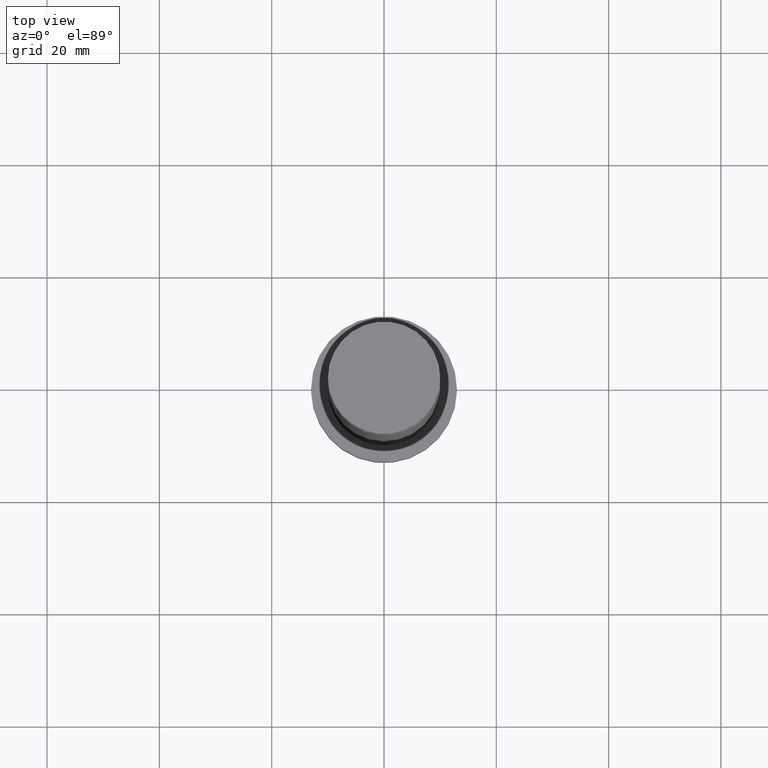
[diagram: clean part render]
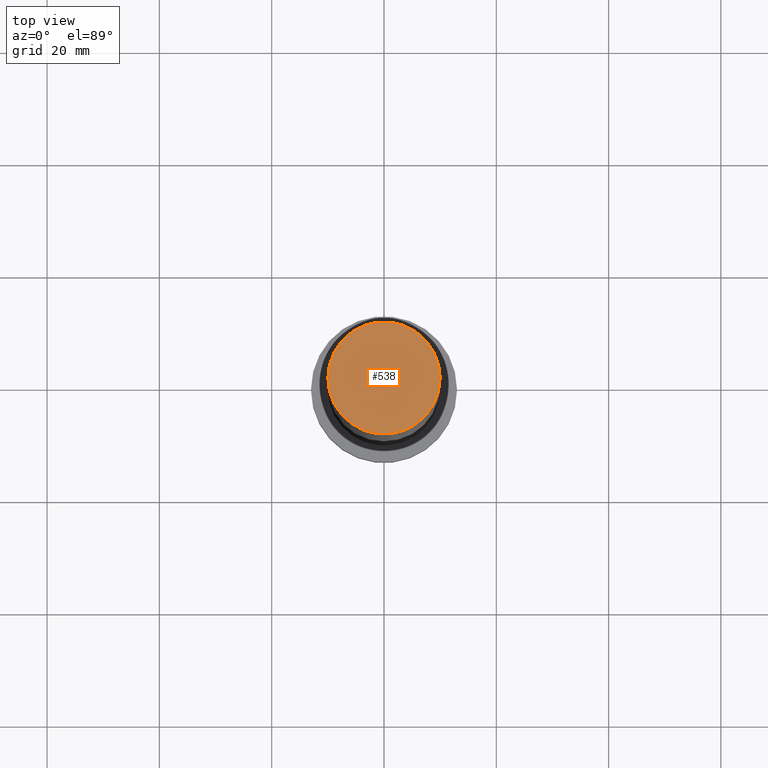
[diagram: same view with one face highlighted and labeled with its STEP entity id]
A machine part, top view. The second image highlights one B-rep face of the part: STEP entity #538.
In plain terms, the highlighted planar face has unit normal (0, 0, 1).
Its self-contained STEP definition (entity closure, byte-faithful):
#30 = AXIS2_PLACEMENT_3D ( 'NONE', #93, #466, #1410 ) ;
#54 = AXIS2_PLACEMENT_3D ( 'NONE', #687, #1573, #580 ) ;
#93 = CARTESIAN_POINT ( 'NONE',  ( 0.000000000000000000, 0.000000000000000000, 125.0000000000000000 ) ) ;
#151 = EDGE_LOOP ( 'NONE', ( #877, #815 ) ) ;
#221 = DIRECTION ( 'NONE',  ( 0.000000000000000000, 0.000000000000000000, 1.000000000000000000 ) ) ;
#229 = DIRECTION ( 'NONE',  ( 1.000000000000000000, 0.000000000000000000, 0.000000000000000000 ) ) ;
#335 = CARTESIAN_POINT ( 'NONE',  ( 0.000000000000000000, 0.000000000000000000, 125.0000000000000000 ) ) ;
#466 = DIRECTION ( 'NONE',  ( 0.000000000000000000, 0.000000000000000000, 1.000000000000000000 ) ) ;
#538 = ADVANCED_FACE ( 'NONE', ( #1557 ), #1184, .T. ) ;
#580 = DIRECTION ( 'NONE',  ( 1.000000000000000000, 0.000000000000000000, 0.000000000000000000 ) ) ;
#687 = CARTESIAN_POINT ( 'NONE',  ( 0.000000000000000000, 0.000000000000000000, 125.0000000000000000 ) ) ;
#736 = CIRCLE ( 'NONE', #54, 10.00000000000000178 ) ;
#776 = VERTEX_POINT ( 'NONE', #1302 ) ;
#815 = ORIENTED_EDGE ( 'NONE', *, *, #917, .T. ) ;
#869 = EDGE_CURVE ( 'NONE', #942, #776, #981, .T. ) ;
#877 = ORIENTED_EDGE ( 'NONE', *, *, #869, .T. ) ;
#917 = EDGE_CURVE ( 'NONE', #776, #942, #736, .T. ) ;
#942 = VERTEX_POINT ( 'NONE', #1567 ) ;
#981 = CIRCLE ( 'NONE', #1279, 10.00000000000000178 ) ;
#1184 = PLANE ( 'NONE',  #30 ) ;
#1279 = AXIS2_PLACEMENT_3D ( 'NONE', #335, #221, #229 ) ;
#1302 = CARTESIAN_POINT ( 'NONE',  ( 10.00000000000000178, 1.224646799147353454E-15, 125.0000000000000000 ) ) ;
#1410 = DIRECTION ( 'NONE',  ( 1.000000000000000000, 0.000000000000000000, -0.000000000000000000 ) ) ;
#1557 = FACE_OUTER_BOUND ( 'NONE', #151, .T. ) ;
#1567 = CARTESIAN_POINT ( 'NONE',  ( -10.00000000000000178, 0.000000000000000000, 125.0000000000000000 ) ) ;
#1573 = DIRECTION ( 'NONE',  ( 0.000000000000000000, 0.000000000000000000, 1.000000000000000000 ) ) ;